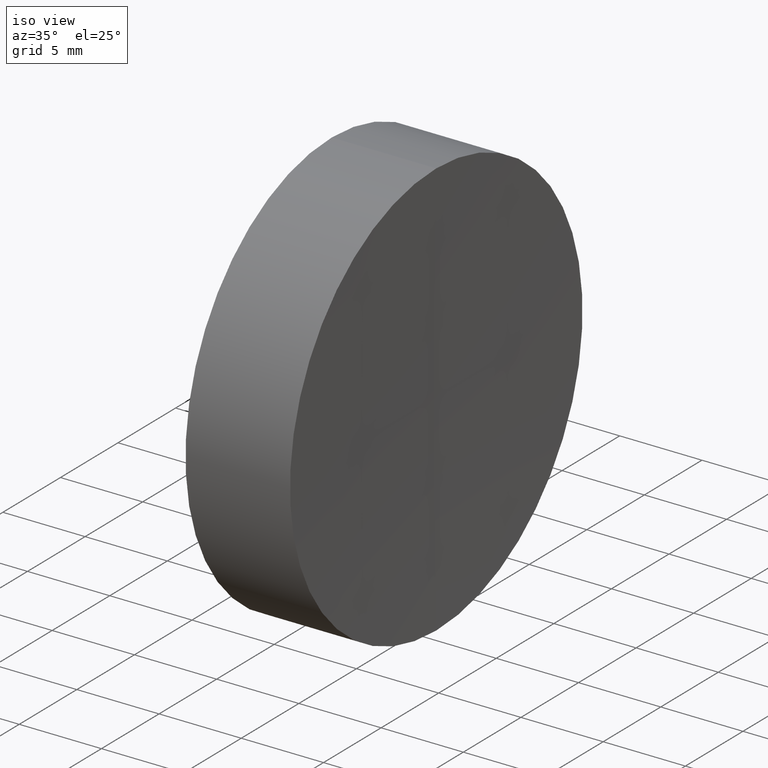
[diagram: clean part render]
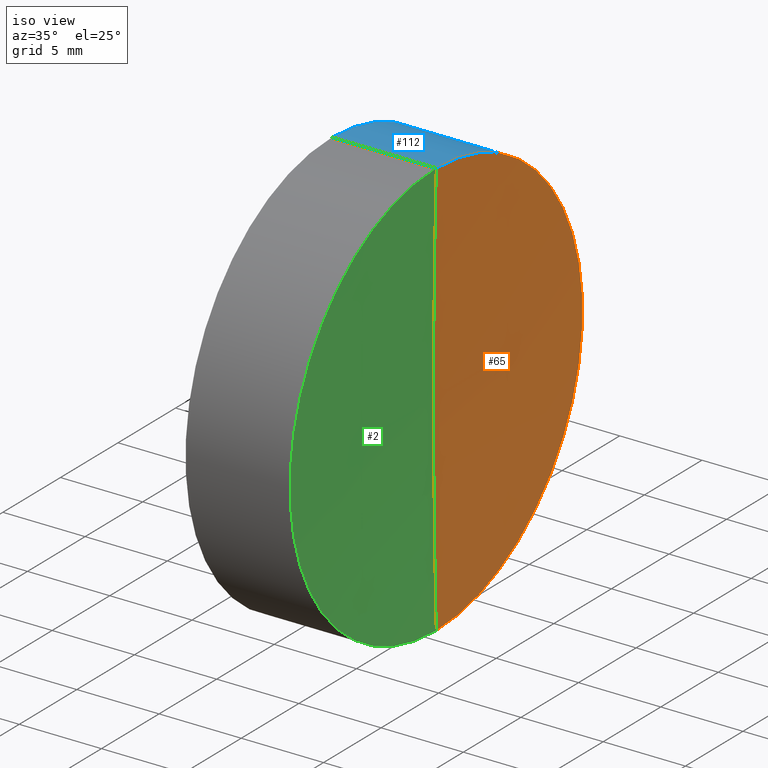
[diagram: same view with three faces highlighted in distinct colors, each labeled with its STEP entity id]
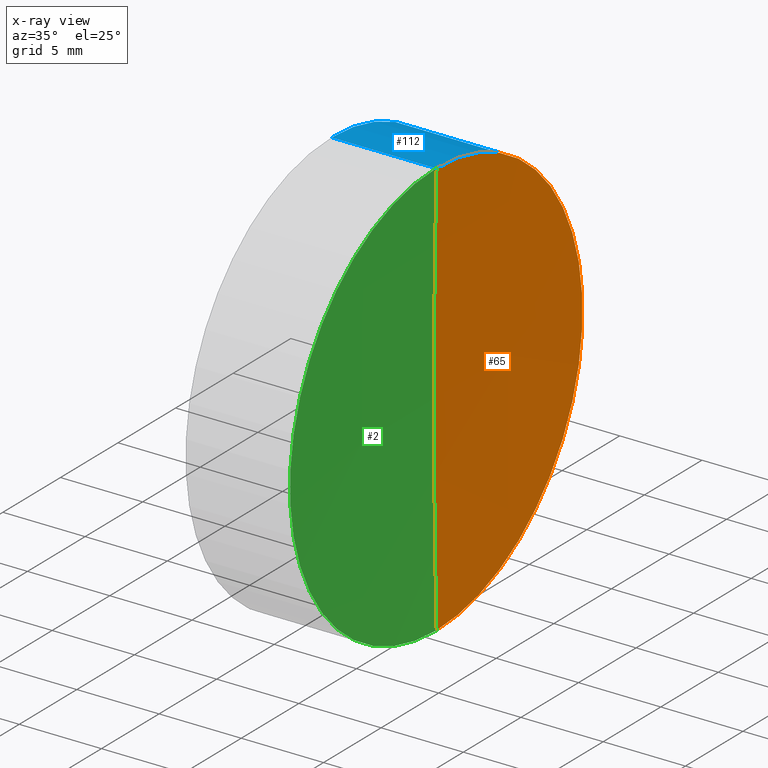
[diagram: x-ray of the same camera — body ghosted, the three highlighted faces saturated]
A machine part, iso view with three faces highlighted in distinct colors.
The next image is the same camera in x-ray (body ghosted, the three faces saturated) — at least one of them is partly hidden behind the body in this view.
Their STEP definitions:

[orange] entity #65 — the highlighted spherical surface has radius 500 mm.
#5 = CARTESIAN_POINT ( 'NONE',  ( 506.1900000000000500, 0.0000000000000000000, 0.0000000000000000000 ) ) ;
#25 = EDGE_CURVE ( 'NONE', #49, #27, #86, .T. ) ;
#27 = VERTEX_POINT ( 'NONE', #103 ) ;
#35 = DIRECTION ( 'NONE',  ( 0.0000000000000000000, -1.224646799147353200E-016, 1.000000000000000000 ) ) ;
#42 = CARTESIAN_POINT ( 'NONE',  ( 506.1900000000000500, 0.0000000000000000000, 0.0000000000000000000 ) ) ;
#48 = CARTESIAN_POINT ( 'NONE',  ( 506.1900000000000500, 0.0000000000000000000, 0.0000000000000000000 ) ) ;
#49 = VERTEX_POINT ( 'NONE', #80 ) ;
#62 = AXIS2_PLACEMENT_3D ( 'NONE', #42, #157, #105 ) ;
#65 = ADVANCED_FACE ( 'NONE', ( #116 ), #97, .F. ) ;
#67 = CARTESIAN_POINT ( 'NONE',  ( 6.351316022859265300, 0.0000000000000000000, 0.0000000000000000000 ) ) ;
#79 = ORIENTED_EDGE ( 'NONE', *, *, #151, .F. ) ;
#80 = CARTESIAN_POINT ( 'NONE',  ( 6.351316022859265300, 0.0000000000000000000, 12.70000000000013400 ) ) ;
#81 = DIRECTION ( 'NONE',  ( 0.0000000000000000000, 1.000000000000000000, 0.0000000000000000000 ) ) ;
#86 = CIRCLE ( 'NONE', #62, 500.0000000000000000 ) ;
#90 = DIRECTION ( 'NONE',  ( -1.000000000000000000, -0.0000000000000000000, -0.0000000000000000000 ) ) ;
#97 = SPHERICAL_SURFACE ( 'NONE', #111, 500.0000000000000000 ) ;
#100 = CIRCLE ( 'NONE', #139, 12.69999999999994200 ) ;
#101 = CARTESIAN_POINT ( 'NONE',  ( 6.351316022859265300, 1.555301434917155200E-015, -12.70000000000013400 ) ) ;
#103 = CARTESIAN_POINT ( 'NONE',  ( 6.190000000000028800, 0.0000000000000000000, 3.061616997868383100E-014 ) ) ;
#105 = DIRECTION ( 'NONE',  ( 0.0000000000000000000, 0.0000000000000000000, -1.000000000000000000 ) ) ;
#111 = AXIS2_PLACEMENT_3D ( 'NONE', #5, #81, #154 ) ;
#116 = FACE_OUTER_BOUND ( 'NONE', #118, .T. ) ;
#118 = EDGE_LOOP ( 'NONE', ( #79, #138, #164 ) ) ;
#119 = DIRECTION ( 'NONE',  ( -0.0000000000000000000, 1.000000000000000000, 1.224646799147353200E-016 ) ) ;
#131 = EDGE_CURVE ( 'NONE', #49, #143, #100, .T. ) ;
#137 = CIRCLE ( 'NONE', #150, 500.0000000000000000 ) ;
#138 = ORIENTED_EDGE ( 'NONE', *, *, #131, .F. ) ;
#139 = AXIS2_PLACEMENT_3D ( 'NONE', #67, #90, #147 ) ;
#143 = VERTEX_POINT ( 'NONE', #101 ) ;
#147 = DIRECTION ( 'NONE',  ( 0.0000000000000000000, 0.0000000000000000000, 1.000000000000000000 ) ) ;
#150 = AXIS2_PLACEMENT_3D ( 'NONE', #48, #119, #35 ) ;
#151 = EDGE_CURVE ( 'NONE', #143, #27, #137, .T. ) ;
#154 = DIRECTION ( 'NONE',  ( 0.0000000000000000000, 0.0000000000000000000, 1.000000000000000000 ) ) ;
#157 = DIRECTION ( 'NONE',  ( 0.0000000000000000000, -1.000000000000000000, 0.0000000000000000000 ) ) ;
#164 = ORIENTED_EDGE ( 'NONE', *, *, #25, .T. ) ;

[blue] entity #112 — the highlighted cylindrical surface (partial cylindrical patch) has radius 12.7 mm, axis along (-1, -0, -0).
#3 = CIRCLE ( 'NONE', #120, 12.69999999999999900 ) ;
#4 = DIRECTION ( 'NONE',  ( 0.0000000000000000000, 0.0000000000000000000, 1.000000000000000000 ) ) ;
#7 = ORIENTED_EDGE ( 'NONE', *, *, #56, .T. ) ;
#11 = VERTEX_POINT ( 'NONE', #92 ) ;
#18 = CARTESIAN_POINT ( 'NONE',  ( 0.0000000000000000000, 0.0000000000000000000, 0.0000000000000000000 ) ) ;
#34 = VECTOR ( 'NONE', #77, 1000.000000000000000 ) ;
#41 = ORIENTED_EDGE ( 'NONE', *, *, #160, .F. ) ;
#44 = CYLINDRICAL_SURFACE ( 'NONE', #128, 12.69999999999997100 ) ;
#49 = VERTEX_POINT ( 'NONE', #80 ) ;
#54 = DIRECTION ( 'NONE',  ( -1.000000000000000000, -0.0000000000000000000, -0.0000000000000000000 ) ) ;
#55 = CARTESIAN_POINT ( 'NONE',  ( 0.0000000000000000000, 1.555301434917138400E-015, -12.69999999999999900 ) ) ;
#56 = EDGE_CURVE ( 'NONE', #143, #135, #109, .T. ) ;
#66 = CARTESIAN_POINT ( 'NONE',  ( 0.0000000000000000000, 0.0000000000000000000, 0.0000000000000000000 ) ) ;
#67 = CARTESIAN_POINT ( 'NONE',  ( 6.351316022859265300, 0.0000000000000000000, 0.0000000000000000000 ) ) ;
#68 = DIRECTION ( 'NONE',  ( 0.0000000000000000000, 0.0000000000000000000, 1.000000000000000000 ) ) ;
#75 = ORIENTED_EDGE ( 'NONE', *, *, #131, .T. ) ;
#77 = DIRECTION ( 'NONE',  ( -1.000000000000000000, -0.0000000000000000000, -0.0000000000000000000 ) ) ;
#80 = CARTESIAN_POINT ( 'NONE',  ( 6.351316022859265300, 0.0000000000000000000, 12.70000000000013400 ) ) ;
#90 = DIRECTION ( 'NONE',  ( -1.000000000000000000, -0.0000000000000000000, -0.0000000000000000000 ) ) ;
#91 = DIRECTION ( 'NONE',  ( -1.000000000000000000, -0.0000000000000000000, -0.0000000000000000000 ) ) ;
#92 = CARTESIAN_POINT ( 'NONE',  ( 0.0000000000000000000, 0.0000000000000000000, 12.69999999999999900 ) ) ;
#100 = CIRCLE ( 'NONE', #139, 12.69999999999994200 ) ;
#101 = CARTESIAN_POINT ( 'NONE',  ( 6.351316022859265300, 1.555301434917155200E-015, -12.70000000000013400 ) ) ;
#109 = LINE ( 'NONE', #141, #34 ) ;
#110 = EDGE_LOOP ( 'NONE', ( #75, #7, #113, #41 ) ) ;
#112 = ADVANCED_FACE ( 'NONE', ( #132 ), #44, .T. ) ;
#113 = ORIENTED_EDGE ( 'NONE', *, *, #123, .F. ) ;
#120 = AXIS2_PLACEMENT_3D ( 'NONE', #18, #91, #4 ) ;
#123 = EDGE_CURVE ( 'NONE', #11, #135, #3, .T. ) ;
#127 = VECTOR ( 'NONE', #133, 1000.000000000000000 ) ;
#128 = AXIS2_PLACEMENT_3D ( 'NONE', #66, #54, #68 ) ;
#131 = EDGE_CURVE ( 'NONE', #49, #143, #100, .T. ) ;
#132 = FACE_OUTER_BOUND ( 'NONE', #110, .T. ) ;
#133 = DIRECTION ( 'NONE',  ( -1.000000000000000000, -0.0000000000000000000, -0.0000000000000000000 ) ) ;
#135 = VERTEX_POINT ( 'NONE', #55 ) ;
#139 = AXIS2_PLACEMENT_3D ( 'NONE', #67, #90, #147 ) ;
#141 = CARTESIAN_POINT ( 'NONE',  ( 0.0000000000000000000, 1.555301434917135100E-015, -12.69999999999997100 ) ) ;
#143 = VERTEX_POINT ( 'NONE', #101 ) ;
#147 = DIRECTION ( 'NONE',  ( 0.0000000000000000000, 0.0000000000000000000, 1.000000000000000000 ) ) ;
#148 = CARTESIAN_POINT ( 'NONE',  ( 0.0000000000000000000, 0.0000000000000000000, 12.69999999999997100 ) ) ;
#160 = EDGE_CURVE ( 'NONE', #49, #11, #166, .T. ) ;
#166 = LINE ( 'NONE', #148, #127 ) ;

[green] entity #2 — the highlighted spherical surface has radius 500 mm.
#2 = ADVANCED_FACE ( 'NONE', ( #85 ), #64, .F. ) ;
#14 = ORIENTED_EDGE ( 'NONE', *, *, #25, .F. ) ;
#17 = DIRECTION ( 'NONE',  ( 0.0000000000000000000, 1.000000000000000000, 0.0000000000000000000 ) ) ;
#19 = CARTESIAN_POINT ( 'NONE',  ( 6.351316022859265300, 0.0000000000000000000, 0.0000000000000000000 ) ) ;
#25 = EDGE_CURVE ( 'NONE', #49, #27, #86, .T. ) ;
#27 = VERTEX_POINT ( 'NONE', #103 ) ;
#29 = EDGE_CURVE ( 'NONE', #143, #49, #89, .T. ) ;
#35 = DIRECTION ( 'NONE',  ( 0.0000000000000000000, -1.224646799147353200E-016, 1.000000000000000000 ) ) ;
#36 = EDGE_LOOP ( 'NONE', ( #104, #39, #14 ) ) ;
#39 = ORIENTED_EDGE ( 'NONE', *, *, #151, .T. ) ;
#42 = CARTESIAN_POINT ( 'NONE',  ( 506.1900000000000500, 0.0000000000000000000, 0.0000000000000000000 ) ) ;
#48 = CARTESIAN_POINT ( 'NONE',  ( 506.1900000000000500, 0.0000000000000000000, 0.0000000000000000000 ) ) ;
#49 = VERTEX_POINT ( 'NONE', #80 ) ;
#62 = AXIS2_PLACEMENT_3D ( 'NONE', #42, #157, #105 ) ;
#64 = SPHERICAL_SURFACE ( 'NONE', #134, 500.0000000000000000 ) ;
#80 = CARTESIAN_POINT ( 'NONE',  ( 6.351316022859265300, 0.0000000000000000000, 12.70000000000013400 ) ) ;
#85 = FACE_OUTER_BOUND ( 'NONE', #36, .T. ) ;
#86 = CIRCLE ( 'NONE', #62, 500.0000000000000000 ) ;
#89 = CIRCLE ( 'NONE', #122, 12.69999999999994200 ) ;
#93 = DIRECTION ( 'NONE',  ( 0.0000000000000000000, 0.0000000000000000000, 1.000000000000000000 ) ) ;
#101 = CARTESIAN_POINT ( 'NONE',  ( 6.351316022859265300, 1.555301434917155200E-015, -12.70000000000013400 ) ) ;
#102 = DIRECTION ( 'NONE',  ( -1.000000000000000000, -0.0000000000000000000, -0.0000000000000000000 ) ) ;
#103 = CARTESIAN_POINT ( 'NONE',  ( 6.190000000000028800, 0.0000000000000000000, 3.061616997868383100E-014 ) ) ;
#104 = ORIENTED_EDGE ( 'NONE', *, *, #29, .F. ) ;
#105 = DIRECTION ( 'NONE',  ( 0.0000000000000000000, 0.0000000000000000000, -1.000000000000000000 ) ) ;
#119 = DIRECTION ( 'NONE',  ( -0.0000000000000000000, 1.000000000000000000, 1.224646799147353200E-016 ) ) ;
#122 = AXIS2_PLACEMENT_3D ( 'NONE', #19, #102, #144 ) ;
#134 = AXIS2_PLACEMENT_3D ( 'NONE', #140, #17, #93 ) ;
#137 = CIRCLE ( 'NONE', #150, 500.0000000000000000 ) ;
#140 = CARTESIAN_POINT ( 'NONE',  ( 506.1900000000000500, 0.0000000000000000000, 0.0000000000000000000 ) ) ;
#143 = VERTEX_POINT ( 'NONE', #101 ) ;
#144 = DIRECTION ( 'NONE',  ( 0.0000000000000000000, 0.0000000000000000000, 1.000000000000000000 ) ) ;
#150 = AXIS2_PLACEMENT_3D ( 'NONE', #48, #119, #35 ) ;
#151 = EDGE_CURVE ( 'NONE', #143, #27, #137, .T. ) ;
#157 = DIRECTION ( 'NONE',  ( 0.0000000000000000000, -1.000000000000000000, 0.0000000000000000000 ) ) ;